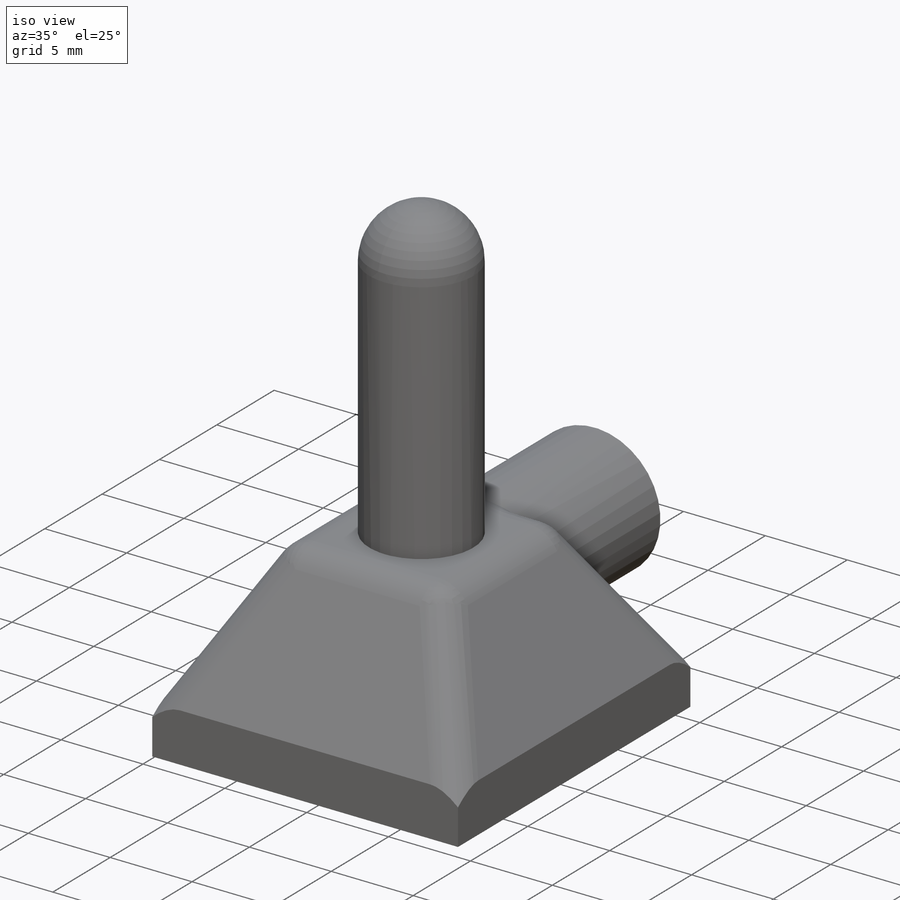
[diagram: iso view]
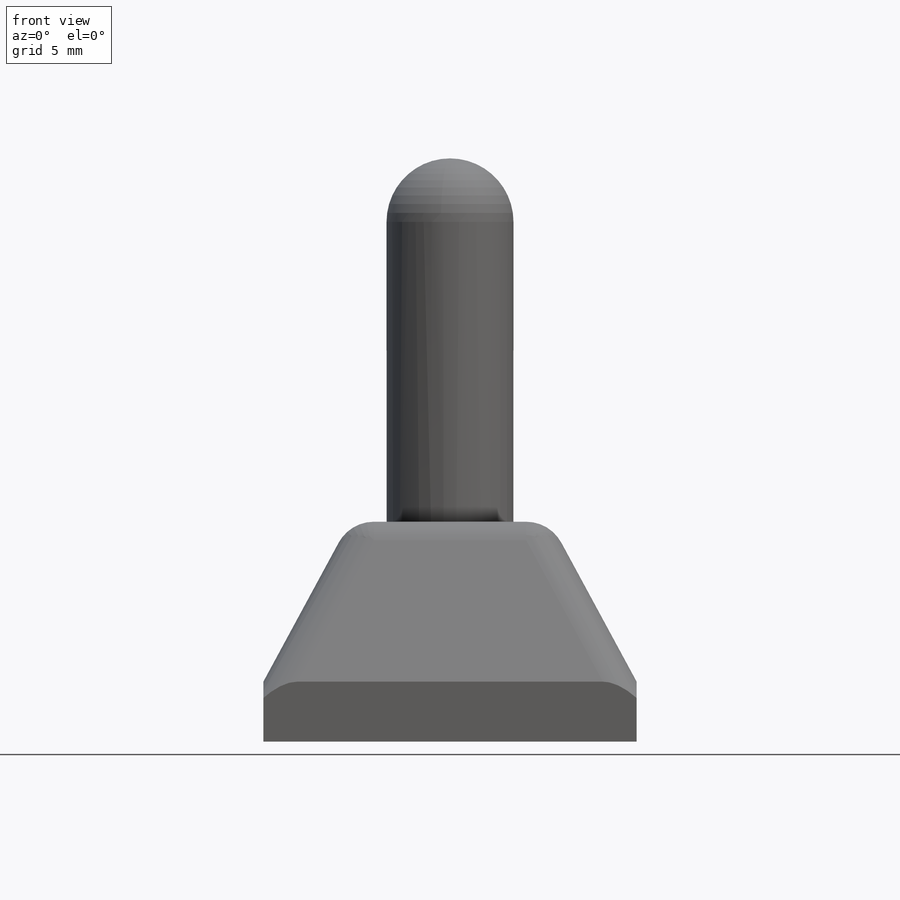
[diagram: front view]
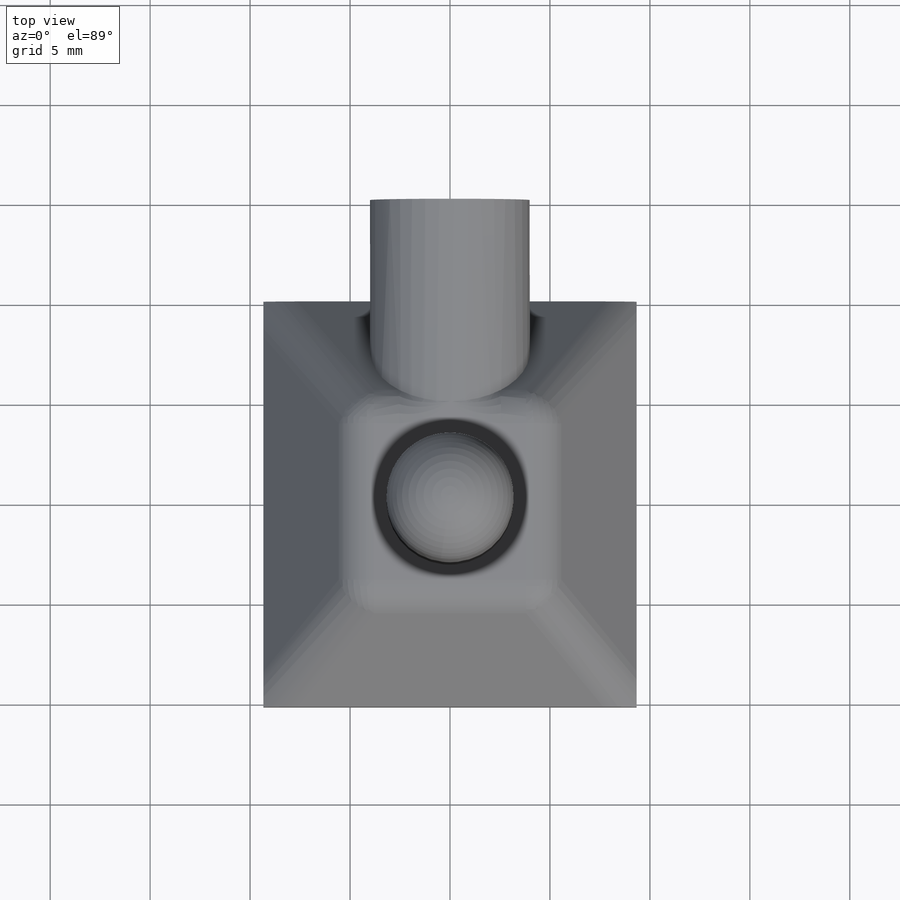
[diagram: top view]
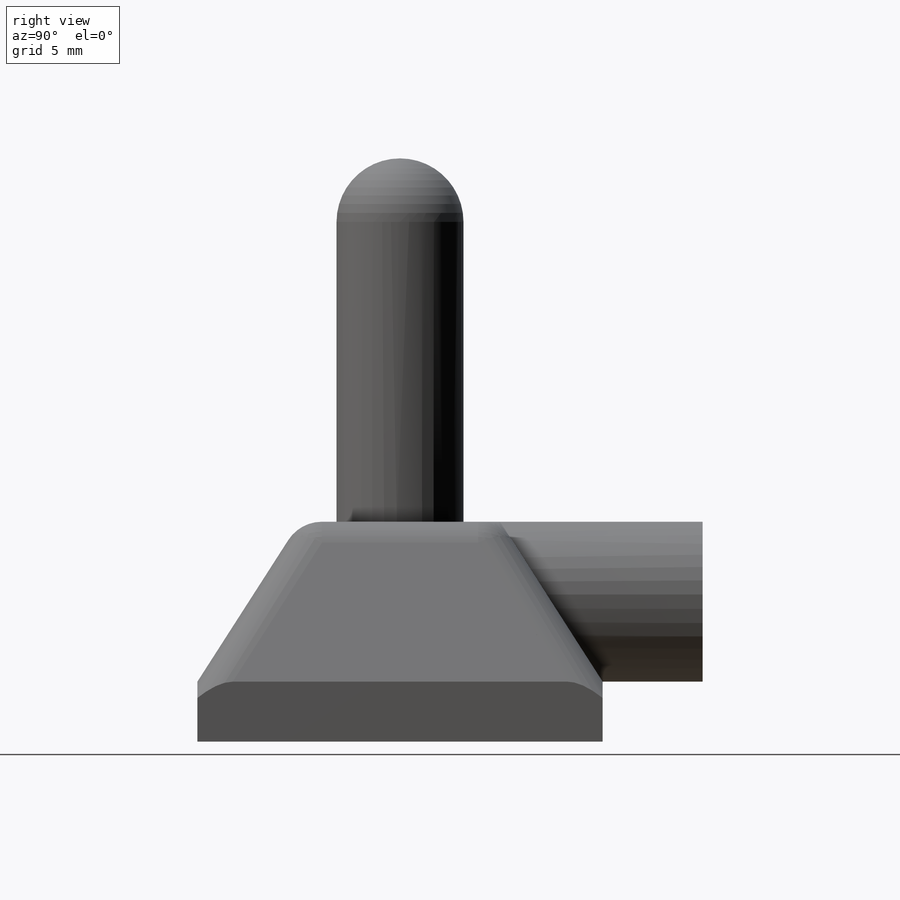
[diagram: right view]
SOLIDWORKS PART (.sldprt)
format: sldprt  version: not decoded by parser v0  size: 1,016,832 bytes
history: native  units: mm
features: sketch x11, extrude x5, cut_extrude x3, pattern_linear x2, material x1, plane x1, shell x1, revolve x1, fillet x1 (+11 scaffold rows collapsed)
feature tree (37):
  scaffold x11  (default folders/planes/origin — collapsed)
  material  "Material <not specified>"
  sketch  "Sketch1"  dims[D1=20.27mm D2=18.67mm]
  extrude  "Extrude1"  Depth=3mm
  sketch  "Sketch2"  dims[D1=0.0mm]
  plane  "Plane1"  Offset=8mm
  sketch  "Sketch3"  dims[D1=10.0mm]
  sketch  "Sketch4"  dims[D1=6.35mm]
  extrude  "Extrude2"  Depth=15mm
  shell  "Shell6"  Thickness=1.5mm
  sketch  "Sketch6"
  extrude  "Extrude4"  Depth=11mm
  sketch  "Sketch7"  dims[D1=4.15mm]
  cut_extrude  "Extrude5"  Depth=9mm
  sketch  "Sketch8"  dims[D1=3.0mm]
  cut_extrude  "Extrude6"  [1 undecoded]
  sketch  "Sketch9"  dims[D1=0.0mm]
  extrude  "Extrude8"  Depth=1.3mm
  sketch  "Sketch5"  dims[D1=1.0mm D2=17.0mm D3=15.0mm]
  cut_extrude  "Extrude3"  [1 undecoded]
  pattern_linear  "LPattern1"  Count1=8 Count2=1 Spacing1=2.1429mm Spacing2=10mm
  pattern_linear  "LPattern2"  Count1=9 Count2=1 Spacing1=2.125mm Spacing2=10mm
  sketch  "Sketch10"
  extrude  "Extrude9"  [1 undecoded]
  sketch  "Sketch11"
  revolve  "Revolve1"  Angle=360deg
  fillet  "Fillet1"  Radius=2mm
decode coverage: 18 of 24 modeling features carry decoded parameters
note: 3 parameter values undecoded
summary: no parameter record found for 3 features
note: suppression state not decoded; provenance and decode notes live in map.json
